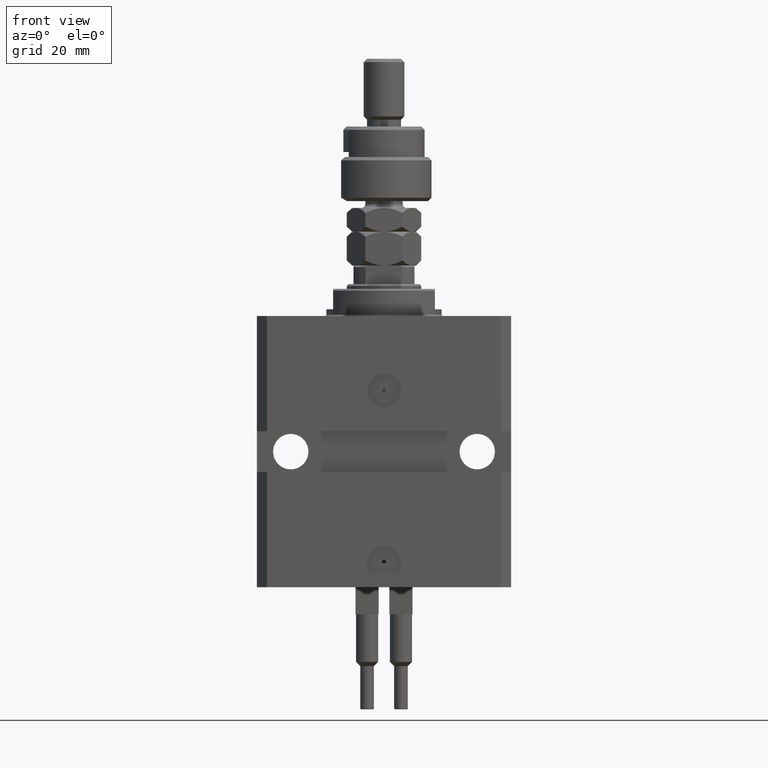
[diagram: clean part render]
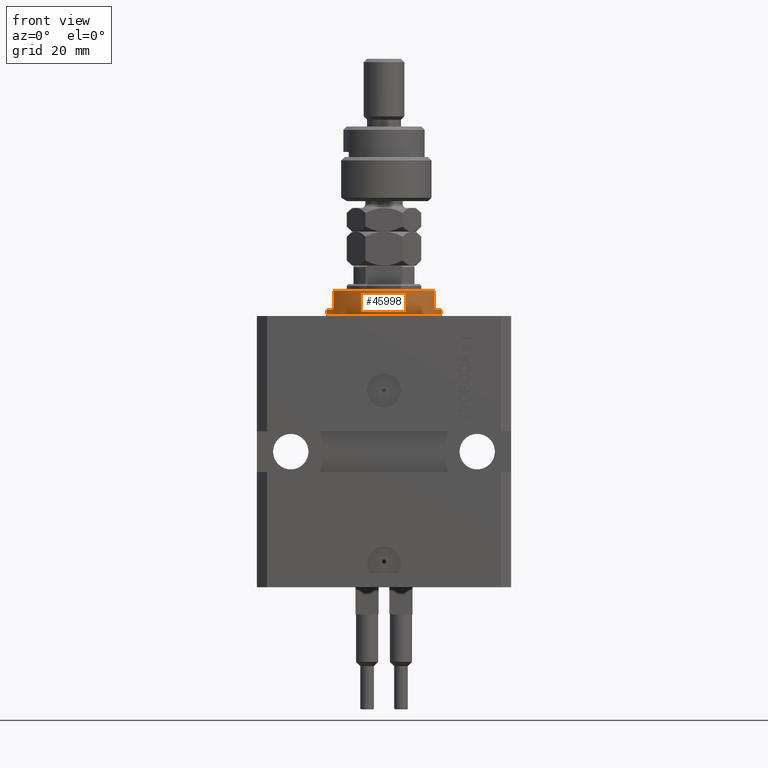
[diagram: same view with one face highlighted and labeled with its STEP entity id]
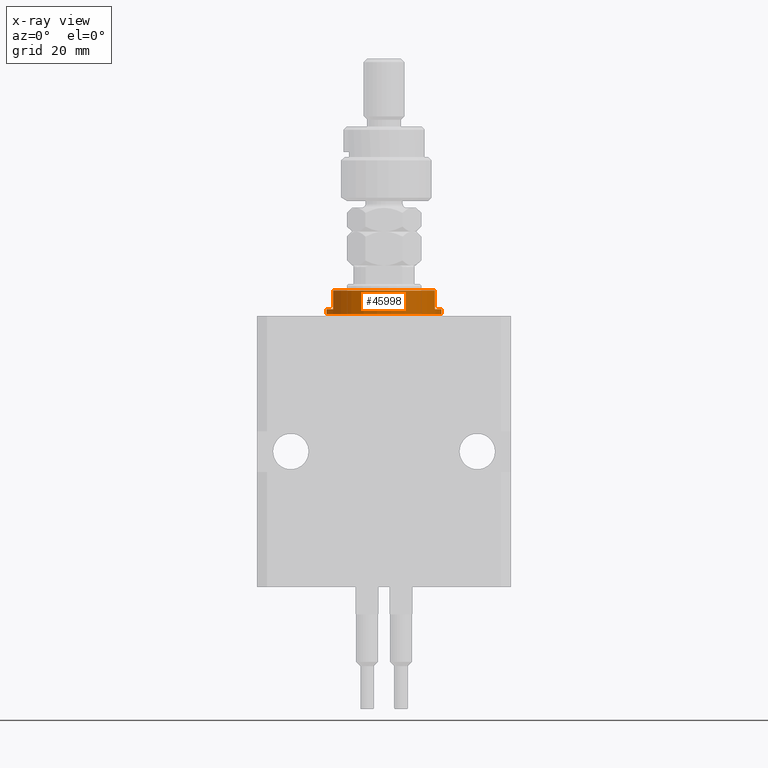
[diagram: x-ray of the same camera — body ghosted, the highlighted face saturated]
A machine part, front view. The second image highlights one B-rep face of the part: STEP entity #45998.
The next image is the same camera in x-ray: the body ghosted, the highlighted face saturated — about 0% of this face is hidden behind the body in this view.
In plain terms, the highlighted cylindrical surface (partial cylindrical patch) has radius 17 mm, axis along (0, 0, -1).
Its self-contained STEP definition (entity closure, byte-faithful):
#1918 = ORIENTED_EDGE ( 'NONE', *, *, #47134, .T. ) ;
#2913 = FACE_OUTER_BOUND ( 'NONE', #26664, .T. ) ;
#3087 = DIRECTION ( 'NONE',  ( -1.000000000000000000, 0.000000000000000000, 0.000000000000000000 ) ) ;
#3131 = CARTESIAN_POINT ( 'NONE',  ( -14.99999999999999645, -8.000000000000003553, -2.000000000000000000 ) ) ;
#3254 = DIRECTION ( 'NONE',  ( -0.000000000000000000, -0.000000000000000000, -1.000000000000000000 ) ) ;
#3998 = DIRECTION ( 'NONE',  ( -0.000000000000000000, -0.000000000000000000, 1.000000000000000000 ) ) ;
#4474 = CARTESIAN_POINT ( 'NONE',  ( -15.00000000000000000, -8.000000000000001776, -7.500000000000014211 ) ) ;
#4680 = AXIS2_PLACEMENT_3D ( 'NONE', #13815, #3254, #18831 ) ;
#5086 = ORIENTED_EDGE ( 'NONE', *, *, #47304, .F. ) ;
#5406 = EDGE_CURVE ( 'NONE', #11043, #27729, #34892, .T. ) ;
#6369 = VECTOR ( 'NONE', #30357, 1000.000000000000000 ) ;
#6612 = VERTEX_POINT ( 'NONE', #39429 ) ;
#7135 = AXIS2_PLACEMENT_3D ( 'NONE', #38396, #22568, #29963 ) ;
#7252 = CYLINDRICAL_SURFACE ( 'NONE', #7135, 17.00000000000000000 ) ;
#9233 = ORIENTED_EDGE ( 'NONE', *, *, #5406, .F. ) ;
#9551 = CARTESIAN_POINT ( 'NONE',  ( 0.000000000000000000, 0.000000000000000000, -2.000000000000000000 ) ) ;
#11043 = VERTEX_POINT ( 'NONE', #37442 ) ;
#13815 = CARTESIAN_POINT ( 'NONE',  ( 0.000000000000000000, 0.000000000000000000, -0.5000000000000004441 ) ) ;
#15064 = CARTESIAN_POINT ( 'NONE',  ( 15.00000000000000000, -8.000000000000001776, -8.000000000000000000 ) ) ;
#15763 = VECTOR ( 'NONE', #45347, 1000.000000000000000 ) ;
#16011 = EDGE_CURVE ( 'NONE', #29974, #26927, #22867, .T. ) ;
#16640 = EDGE_CURVE ( 'NONE', #29974, #6612, #45969, .T. ) ;
#16734 = CARTESIAN_POINT ( 'NONE',  ( 17.00000000000000000, 0.000000000000000000, -0.5000000000000004441 ) ) ;
#16754 = CIRCLE ( 'NONE', #33043, 17.00000000000000000 ) ;
#18831 = DIRECTION ( 'NONE',  ( 1.000000000000000000, 0.000000000000000000, 0.000000000000000000 ) ) ;
#19571 = VECTOR ( 'NONE', #3998, 1000.000000000000000 ) ;
#22568 = DIRECTION ( 'NONE',  ( -0.000000000000000000, -0.000000000000000000, 1.000000000000000000 ) ) ;
#22651 = DIRECTION ( 'NONE',  ( -1.000000000000000000, 0.000000000000000000, 0.000000000000000000 ) ) ;
#22867 = LINE ( 'NONE', #26686, #15763 ) ;
#24510 = ORIENTED_EDGE ( 'NONE', *, *, #31746, .F. ) ;
#25616 = DIRECTION ( 'NONE',  ( 0.000000000000000000, 0.000000000000000000, -1.000000000000000000 ) ) ;
#26283 = CIRCLE ( 'NONE', #46673, 17.00000000000000000 ) ;
#26664 = EDGE_LOOP ( 'NONE', ( #9233, #24510, #1918, #44969, #5086, #45048, #50532, #45104 ) ) ;
#26680 = CIRCLE ( 'NONE', #4680, 17.00000000000000000 ) ;
#26686 = CARTESIAN_POINT ( 'NONE',  ( 17.00000000000000000, 0.000000000000000000, -8.000000000000000000 ) ) ;
#26927 = VERTEX_POINT ( 'NONE', #16734 ) ;
#27469 = DIRECTION ( 'NONE',  ( 0.000000000000000000, 0.000000000000000000, 1.000000000000000000 ) ) ;
#27729 = VERTEX_POINT ( 'NONE', #44182 ) ;
#27861 = EDGE_CURVE ( 'NONE', #26927, #27729, #26680, .T. ) ;
#29165 = VECTOR ( 'NONE', #47085, 1000.000000000000000 ) ;
#29886 = CARTESIAN_POINT ( 'NONE',  ( 0.000000000000000000, 0.000000000000000000, -2.000000000000000000 ) ) ;
#29963 = DIRECTION ( 'NONE',  ( 1.000000000000000000, 0.000000000000000000, 0.000000000000000000 ) ) ;
#29974 = VERTEX_POINT ( 'NONE', #47222 ) ;
#30357 = DIRECTION ( 'NONE',  ( 0.000000000000000000, 0.000000000000000000, -1.000000000000000000 ) ) ;
#30429 = VERTEX_POINT ( 'NONE', #48152 ) ;
#31495 = LINE ( 'NONE', #46075, #29165 ) ;
#31746 = EDGE_CURVE ( 'NONE', #48154, #11043, #26283, .T. ) ;
#33043 = AXIS2_PLACEMENT_3D ( 'NONE', #34893, #27469, #22651 ) ;
#34892 = LINE ( 'NONE', #49957, #19571 ) ;
#34893 = CARTESIAN_POINT ( 'NONE',  ( 0.000000000000000000, 0.000000000000000000, -7.500000000000013323 ) ) ;
#37442 = CARTESIAN_POINT ( 'NONE',  ( -17.00000000000000000, 2.081899558550500280E-15, -2.000000000000000000 ) ) ;
#37805 = EDGE_CURVE ( 'NONE', #41322, #30429, #16754, .T. ) ;
#38396 = CARTESIAN_POINT ( 'NONE',  ( 0.000000000000000000, 0.000000000000000000, -8.000000000000000000 ) ) ;
#39429 = CARTESIAN_POINT ( 'NONE',  ( 14.99999999999999645, -8.000000000000003553, -2.000000000000000000 ) ) ;
#41205 = DIRECTION ( 'NONE',  ( -1.000000000000000000, 0.000000000000000000, 0.000000000000000000 ) ) ;
#41322 = VERTEX_POINT ( 'NONE', #4474 ) ;
#43541 = AXIS2_PLACEMENT_3D ( 'NONE', #29886, #45727, #3087 ) ;
#44182 = CARTESIAN_POINT ( 'NONE',  ( -17.00000000000000000, 2.081899558550500280E-15, -0.5000000000000004441 ) ) ;
#44969 = ORIENTED_EDGE ( 'NONE', *, *, #37805, .T. ) ;
#45048 = ORIENTED_EDGE ( 'NONE', *, *, #16640, .F. ) ;
#45104 = ORIENTED_EDGE ( 'NONE', *, *, #27861, .T. ) ;
#45347 = DIRECTION ( 'NONE',  ( -0.000000000000000000, -0.000000000000000000, 1.000000000000000000 ) ) ;
#45453 = LINE ( 'NONE', #15064, #6369 ) ;
#45727 = DIRECTION ( 'NONE',  ( 0.000000000000000000, 0.000000000000000000, -1.000000000000000000 ) ) ;
#45969 = CIRCLE ( 'NONE', #43541, 17.00000000000000000 ) ;
#45998 = ADVANCED_FACE ( 'NONE', ( #2913 ), #7252, .T. ) ;
#46075 = CARTESIAN_POINT ( 'NONE',  ( -15.00000000000000000, -8.000000000000001776, -8.000000000000000000 ) ) ;
#46673 = AXIS2_PLACEMENT_3D ( 'NONE', #9551, #25616, #41205 ) ;
#47085 = DIRECTION ( 'NONE',  ( 0.000000000000000000, 0.000000000000000000, -1.000000000000000000 ) ) ;
#47134 = EDGE_CURVE ( 'NONE', #48154, #41322, #31495, .T. ) ;
#47222 = CARTESIAN_POINT ( 'NONE',  ( 17.00000000000000000, 0.000000000000000000, -2.000000000000000000 ) ) ;
#47304 = EDGE_CURVE ( 'NONE', #6612, #30429, #45453, .T. ) ;
#48152 = CARTESIAN_POINT ( 'NONE',  ( 15.00000000000000000, -8.000000000000001776, -7.500000000000013323 ) ) ;
#48154 = VERTEX_POINT ( 'NONE', #3131 ) ;
#49957 = CARTESIAN_POINT ( 'NONE',  ( -17.00000000000000000, 2.081899558550500280E-15, -8.000000000000000000 ) ) ;
#50532 = ORIENTED_EDGE ( 'NONE', *, *, #16011, .T. ) ;